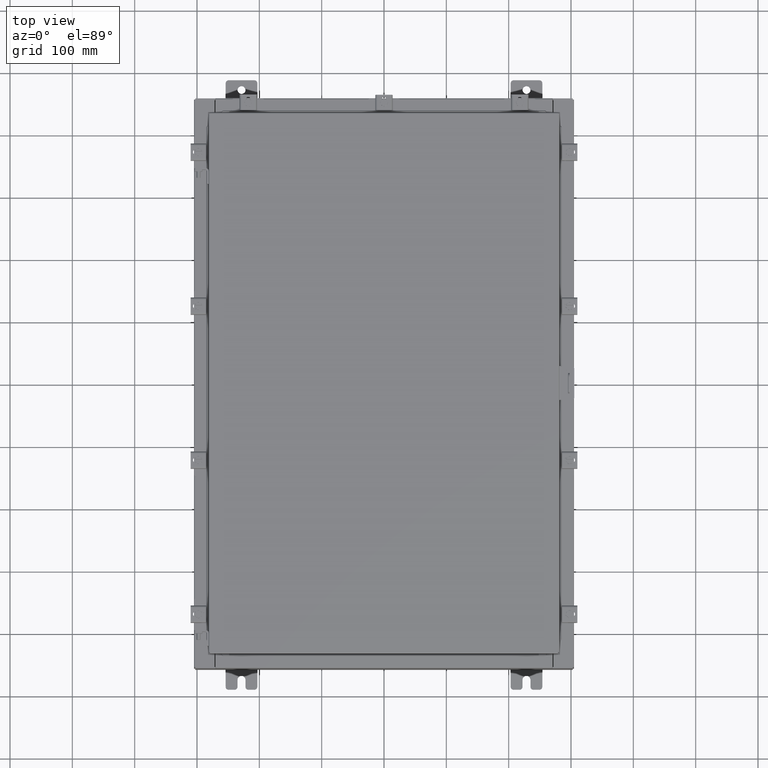
[diagram: clean part render]
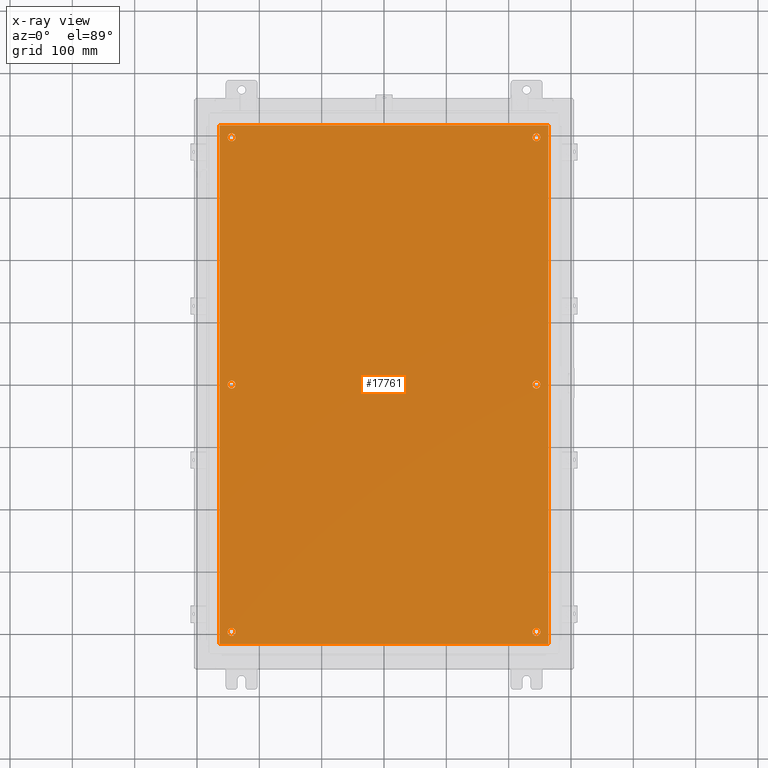
[diagram: x-ray — body ghosted, one internal face saturated and labeled with its STEP entity id]
A machine part, top view, then the same camera in x-ray: the body is ghosted and one INTERNAL B-rep face — a face not visible from any outside direction — is saturated and labeled: STEP entity #17761.
In plain terms, the highlighted planar face has unit normal (0, 0, -1).
Its self-contained STEP definition (entity closure, byte-faithful):
#327 = ORIENTED_EDGE ( 'NONE', *, *, #1531, .T. ) ;
#496 = EDGE_CURVE ( 'NONE', #18662, #17972, #12040, .T. ) ;
#560 = ORIENTED_EDGE ( 'NONE', *, *, #2446, .T. ) ;
#1047 = DIRECTION ( 'NONE',  ( -0.0000000000000000000, -0.0000000000000000000, 1.000000000000000000 ) ) ;
#1229 = ORIENTED_EDGE ( 'NONE', *, *, #12869, .T. ) ;
#1395 = CARTESIAN_POINT ( 'NONE',  ( 9.875000000000007100, 15.62500000000000200, -0.1039999999999999800 ) ) ;
#1531 = EDGE_CURVE ( 'NONE', #17713, #14114, #1981, .T. ) ;
#1641 = CARTESIAN_POINT ( 'NONE',  ( -9.625000000000007100, -15.62500000000000200, -0.1039999999999999800 ) ) ;
#1773 = ORIENTED_EDGE ( 'NONE', *, *, #10586, .T. ) ;
#1909 = CARTESIAN_POINT ( 'NONE',  ( -9.875000000000007100, 15.62500000000000200, -0.1039999999999999800 ) ) ;
#1981 = CIRCLE ( 'NONE', #7993, 0.2500000000000008900 ) ;
#2149 = CARTESIAN_POINT ( 'NONE',  ( 9.875000000000007100, -15.62500000000000200, -0.1039999999999999800 ) ) ;
#2173 = CARTESIAN_POINT ( 'NONE',  ( 9.625000000000007100, -15.62500000000000200, -0.1039999999999999800 ) ) ;
#2237 = EDGE_CURVE ( 'NONE', #8862, #17233, #19991, .T. ) ;
#2446 = EDGE_CURVE ( 'NONE', #17233, #8862, #11827, .T. ) ;
#2678 = CARTESIAN_POINT ( 'NONE',  ( -10.38300000000000100, 16.38300000000000300, -0.1039999999999987600 ) ) ;
#2726 = ORIENTED_EDGE ( 'NONE', *, *, #10454, .T. ) ;
#2852 = CIRCLE ( 'NONE', #15092, 0.2499999999999998100 ) ;
#3015 = VERTEX_POINT ( 'NONE', #13951 ) ;
#3472 = DIRECTION ( 'NONE',  ( -1.000000000000000000, 0.0000000000000000000, 0.0000000000000000000 ) ) ;
#3526 = FACE_BOUND ( 'NONE', #15108, .T. ) ;
#3667 = LINE ( 'NONE', #4409, #16289 ) ;
#3702 = EDGE_LOOP ( 'NONE', ( #8308, #22287, #23240, #9431 ) ) ;
#3992 = CARTESIAN_POINT ( 'NONE',  ( 0.0000000000000000000, 0.0000000000000000000, -0.1039999999999999800 ) ) ;
#4008 = DIRECTION ( 'NONE',  ( -1.000000000000000000, 0.0000000000000000000, 0.0000000000000000000 ) ) ;
#4095 = CARTESIAN_POINT ( 'NONE',  ( 9.375000000000007100, 2.650915570591087300E-015, -0.1039999999999999800 ) ) ;
#4206 = DIRECTION ( 'NONE',  ( -0.0000000000000000000, -0.0000000000000000000, 1.000000000000000000 ) ) ;
#4273 = CARTESIAN_POINT ( 'NONE',  ( 9.375000000000007100, 15.62500000000000200, -0.1039999999999999800 ) ) ;
#4362 = VECTOR ( 'NONE', #11618, 39.37007874015748100 ) ;
#4409 = CARTESIAN_POINT ( 'NONE',  ( -10.50000000000000200, -16.38299999999999600, -0.1040000000000009100 ) ) ;
#4437 = EDGE_CURVE ( 'NONE', #7335, #9704, #2852, .T. ) ;
#4454 = CARTESIAN_POINT ( 'NONE',  ( 10.38300000000000100, -16.38299999999999600, -0.1040000000000009100 ) ) ;
#4493 = AXIS2_PLACEMENT_3D ( 'NONE', #7676, #20218, #9467 ) ;
#4548 = CIRCLE ( 'NONE', #13576, 0.2500000000000008900 ) ;
#4688 = VERTEX_POINT ( 'NONE', #4095 ) ;
#5017 = AXIS2_PLACEMENT_3D ( 'NONE', #2173, #14761, #4008 ) ;
#5171 = AXIS2_PLACEMENT_3D ( 'NONE', #1641, #14213, #3472 ) ;
#5226 = EDGE_CURVE ( 'NONE', #9607, #20284, #3667, .T. ) ;
#5318 = ORIENTED_EDGE ( 'NONE', *, *, #13765, .T. ) ;
#5533 = CARTESIAN_POINT ( 'NONE',  ( -9.375000000000007100, 15.62500000000000200, -0.1039999999999999800 ) ) ;
#6064 = DIRECTION ( 'NONE',  ( -0.0000000000000000000, -0.0000000000000000000, 1.000000000000000000 ) ) ;
#6156 = EDGE_LOOP ( 'NONE', ( #1229, #21907 ) ) ;
#6458 = CIRCLE ( 'NONE', #18782, 0.2499999999999998100 ) ;
#6660 = CARTESIAN_POINT ( 'NONE',  ( 10.38300000000000100, -16.38299999999999600, -0.1040000000000009100 ) ) ;
#6683 = DIRECTION ( 'NONE',  ( -0.0000000000000000000, -0.0000000000000000000, 1.000000000000000000 ) ) ;
#6889 = CIRCLE ( 'NONE', #16619, 0.2499999999999998100 ) ;
#6916 = DIRECTION ( 'NONE',  ( -0.0000000000000000000, -0.0000000000000000000, 1.000000000000000000 ) ) ;
#7178 = EDGE_CURVE ( 'NONE', #3015, #22926, #22176, .T. ) ;
#7300 = CARTESIAN_POINT ( 'NONE',  ( -9.625000000000007100, 15.62500000000000200, -0.1039999999999999800 ) ) ;
#7335 = VERTEX_POINT ( 'NONE', #1395 ) ;
#7491 = ORIENTED_EDGE ( 'NONE', *, *, #496, .T. ) ;
#7591 = DIRECTION ( 'NONE',  ( -1.000000000000000000, 0.0000000000000000000, -0.0000000000000000000 ) ) ;
#7676 = CARTESIAN_POINT ( 'NONE',  ( -9.625000000000005300, 2.628543122537473900E-016, -0.1039999999999999800 ) ) ;
#7993 = AXIS2_PLACEMENT_3D ( 'NONE', #14959, #4206, #16754 ) ;
#8145 = CARTESIAN_POINT ( 'NONE',  ( -9.375000000000007100, -15.62500000000000200, -0.1039999999999999800 ) ) ;
#8305 = FACE_BOUND ( 'NONE', #9524, .T. ) ;
#8308 = ORIENTED_EDGE ( 'NONE', *, *, #5226, .F. ) ;
#8401 = CARTESIAN_POINT ( 'NONE',  ( 9.875000000000007100, 2.620299400612403500E-015, -0.1039999999999999800 ) ) ;
#8591 = VERTEX_POINT ( 'NONE', #8401 ) ;
#8621 = CARTESIAN_POINT ( 'NONE',  ( 9.625000000000007100, 15.62500000000000200, -0.1039999999999999800 ) ) ;
#8862 = VERTEX_POINT ( 'NONE', #19861 ) ;
#8909 = AXIS2_PLACEMENT_3D ( 'NONE', #16783, #6064, #18590 ) ;
#9125 = DIRECTION ( 'NONE',  ( -1.000000000000000000, 0.0000000000000000000, 0.0000000000000000000 ) ) ;
#9144 = LINE ( 'NONE', #6660, #13328 ) ;
#9170 = EDGE_LOOP ( 'NONE', ( #1773, #21283 ) ) ;
#9431 = ORIENTED_EDGE ( 'NONE', *, *, #17973, .F. ) ;
#9467 = DIRECTION ( 'NONE',  ( -1.000000000000000000, 0.0000000000000000000, 0.0000000000000000000 ) ) ;
#9513 = CARTESIAN_POINT ( 'NONE',  ( 9.625000000000007100, 15.62500000000000200, -0.1039999999999999800 ) ) ;
#9524 = EDGE_LOOP ( 'NONE', ( #560, #16279 ) ) ;
#9607 = VERTEX_POINT ( 'NONE', #11157 ) ;
#9704 = VERTEX_POINT ( 'NONE', #4273 ) ;
#9929 = ORIENTED_EDGE ( 'NONE', *, *, #17324, .T. ) ;
#10239 = CARTESIAN_POINT ( 'NONE',  ( -9.625000000000007100, 15.62500000000000200, -0.1039999999999999800 ) ) ;
#10248 = DIRECTION ( 'NONE',  ( 0.0000000000000000000, 1.000000000000000000, 0.0000000000000000000 ) ) ;
#10393 = DIRECTION ( 'NONE',  ( -1.000000000000000000, 0.0000000000000000000, 0.0000000000000000000 ) ) ;
#10454 = EDGE_CURVE ( 'NONE', #17972, #18662, #10939, .T. ) ;
#10547 = AXIS2_PLACEMENT_3D ( 'NONE', #10239, #22839, #12045 ) ;
#10586 = EDGE_CURVE ( 'NONE', #8591, #4688, #12919, .T. ) ;
#10939 = CIRCLE ( 'NONE', #4493, 0.2500000000000008900 ) ;
#11124 = PLANE ( 'NONE',  #12148 ) ;
#11157 = CARTESIAN_POINT ( 'NONE',  ( -10.38300000000000100, -16.38299999999999600, -0.1040000000000009100 ) ) ;
#11325 = DIRECTION ( 'NONE',  ( -1.000000000000000000, 0.0000000000000000000, 0.0000000000000000000 ) ) ;
#11518 = EDGE_CURVE ( 'NONE', #4688, #8591, #6458, .T. ) ;
#11556 = CIRCLE ( 'NONE', #5171, 0.2500000000000008900 ) ;
#11618 = DIRECTION ( 'NONE',  ( 0.0000000000000000000, -1.000000000000000000, 0.0000000000000000000 ) ) ;
#11820 = CARTESIAN_POINT ( 'NONE',  ( 9.625000000000007100, 2.620299400612403500E-015, -0.1039999999999999800 ) ) ;
#11827 = CIRCLE ( 'NONE', #20657, 0.2499999999999998100 ) ;
#12040 = CIRCLE ( 'NONE', #8909, 0.2500000000000008900 ) ;
#12045 = DIRECTION ( 'NONE',  ( -1.000000000000000000, 0.0000000000000000000, 0.0000000000000000000 ) ) ;
#12148 = AXIS2_PLACEMENT_3D ( 'NONE', #3992, #18331, #7591 ) ;
#12869 = EDGE_CURVE ( 'NONE', #19356, #18241, #16655, .T. ) ;
#12919 = CIRCLE ( 'NONE', #12924, 0.2499999999999998100 ) ;
#12924 = AXIS2_PLACEMENT_3D ( 'NONE', #11820, #1047, #13633 ) ;
#13070 = FACE_BOUND ( 'NONE', #9170, .T. ) ;
#13328 = VECTOR ( 'NONE', #10248, 39.37007874015748100 ) ;
#13576 = AXIS2_PLACEMENT_3D ( 'NONE', #7300, #19868, #9125 ) ;
#13633 = DIRECTION ( 'NONE',  ( -1.000000000000000000, 0.0000000000000000000, 0.0000000000000000000 ) ) ;
#13765 = EDGE_CURVE ( 'NONE', #14114, #17713, #11556, .T. ) ;
#13859 = EDGE_CURVE ( 'NONE', #18241, #19356, #4548, .T. ) ;
#13916 = LINE ( 'NONE', #2678, #4362 ) ;
#13951 = CARTESIAN_POINT ( 'NONE',  ( 10.38300000000000100, 16.38300000000000300, -0.1040000000000009100 ) ) ;
#14114 = VERTEX_POINT ( 'NONE', #8145 ) ;
#14213 = DIRECTION ( 'NONE',  ( -0.0000000000000000000, -0.0000000000000000000, 1.000000000000000000 ) ) ;
#14754 = FACE_BOUND ( 'NONE', #21418, .T. ) ;
#14761 = DIRECTION ( 'NONE',  ( -0.0000000000000000000, -0.0000000000000000000, 1.000000000000000000 ) ) ;
#14959 = CARTESIAN_POINT ( 'NONE',  ( -9.625000000000007100, -15.62500000000000200, -0.1039999999999999800 ) ) ;
#15092 = AXIS2_PLACEMENT_3D ( 'NONE', #8621, #21191, #10393 ) ;
#15108 = EDGE_LOOP ( 'NONE', ( #18340, #9929 ) ) ;
#15203 = CARTESIAN_POINT ( 'NONE',  ( -10.38300000000000100, 16.38300000000000300, -0.1039999999999987600 ) ) ;
#16279 = ORIENTED_EDGE ( 'NONE', *, *, #2237, .T. ) ;
#16289 = VECTOR ( 'NONE', #18750, 39.37007874015748100 ) ;
#16462 = CARTESIAN_POINT ( 'NONE',  ( -9.875000000000007100, -15.62500000000000200, -0.1039999999999999800 ) ) ;
#16619 = AXIS2_PLACEMENT_3D ( 'NONE', #9513, #22121, #11325 ) ;
#16655 = CIRCLE ( 'NONE', #10547, 0.2500000000000008900 ) ;
#16754 = DIRECTION ( 'NONE',  ( -1.000000000000000000, 0.0000000000000000000, 0.0000000000000000000 ) ) ;
#16783 = CARTESIAN_POINT ( 'NONE',  ( -9.625000000000005300, 2.628543122537473900E-016, -0.1039999999999999800 ) ) ;
#17233 = VERTEX_POINT ( 'NONE', #2149 ) ;
#17281 = FACE_OUTER_BOUND ( 'NONE', #3702, .T. ) ;
#17324 = EDGE_CURVE ( 'NONE', #9704, #7335, #6889, .T. ) ;
#17387 = VECTOR ( 'NONE', #22466, 39.37007874015748100 ) ;
#17422 = CARTESIAN_POINT ( 'NONE',  ( 9.625000000000007100, 2.620299400612403500E-015, -0.1039999999999999800 ) ) ;
#17633 = CARTESIAN_POINT ( 'NONE',  ( 9.625000000000007100, -15.62500000000000200, -0.1039999999999999800 ) ) ;
#17713 = VERTEX_POINT ( 'NONE', #16462 ) ;
#17761 = ADVANCED_FACE ( 'NONE', ( #13070, #22661, #14754, #8305, #3526, #22079, #17281 ), #11124, .T. ) ;
#17972 = VERTEX_POINT ( 'NONE', #19203 ) ;
#17973 = EDGE_CURVE ( 'NONE', #20284, #3015, #9144, .T. ) ;
#18241 = VERTEX_POINT ( 'NONE', #1909 ) ;
#18331 = DIRECTION ( 'NONE',  ( 0.0000000000000000000, 0.0000000000000000000, -1.000000000000000000 ) ) ;
#18340 = ORIENTED_EDGE ( 'NONE', *, *, #4437, .T. ) ;
#18590 = DIRECTION ( 'NONE',  ( -1.000000000000000000, 0.0000000000000000000, 0.0000000000000000000 ) ) ;
#18662 = VERTEX_POINT ( 'NONE', #19084 ) ;
#18750 = DIRECTION ( 'NONE',  ( 1.000000000000000000, -0.0000000000000000000, -0.0000000000000000000 ) ) ;
#18782 = AXIS2_PLACEMENT_3D ( 'NONE', #17422, #6683, #19232 ) ;
#18821 = CARTESIAN_POINT ( 'NONE',  ( 10.50000000000000400, 16.38299999999999900, -0.1040000000000009100 ) ) ;
#18973 = EDGE_LOOP ( 'NONE', ( #7491, #2726 ) ) ;
#19084 = CARTESIAN_POINT ( 'NONE',  ( -9.375000000000005300, 2.628543122537473900E-016, -0.1039999999999999800 ) ) ;
#19203 = CARTESIAN_POINT ( 'NONE',  ( -9.875000000000005300, 2.934704822324310800E-016, -0.1039999999999999800 ) ) ;
#19232 = DIRECTION ( 'NONE',  ( -1.000000000000000000, 0.0000000000000000000, 0.0000000000000000000 ) ) ;
#19356 = VERTEX_POINT ( 'NONE', #5533 ) ;
#19451 = DIRECTION ( 'NONE',  ( -1.000000000000000000, 0.0000000000000000000, 0.0000000000000000000 ) ) ;
#19636 = EDGE_CURVE ( 'NONE', #22926, #9607, #13916, .T. ) ;
#19861 = CARTESIAN_POINT ( 'NONE',  ( 9.375000000000007100, -15.62500000000000200, -0.1039999999999999800 ) ) ;
#19868 = DIRECTION ( 'NONE',  ( -0.0000000000000000000, -0.0000000000000000000, 1.000000000000000000 ) ) ;
#19991 = CIRCLE ( 'NONE', #5017, 0.2499999999999998100 ) ;
#20218 = DIRECTION ( 'NONE',  ( -0.0000000000000000000, -0.0000000000000000000, 1.000000000000000000 ) ) ;
#20284 = VERTEX_POINT ( 'NONE', #4454 ) ;
#20657 = AXIS2_PLACEMENT_3D ( 'NONE', #17633, #6916, #19451 ) ;
#21191 = DIRECTION ( 'NONE',  ( -0.0000000000000000000, -0.0000000000000000000, 1.000000000000000000 ) ) ;
#21283 = ORIENTED_EDGE ( 'NONE', *, *, #11518, .T. ) ;
#21418 = EDGE_LOOP ( 'NONE', ( #5318, #327 ) ) ;
#21907 = ORIENTED_EDGE ( 'NONE', *, *, #13859, .T. ) ;
#22079 = FACE_BOUND ( 'NONE', #6156, .T. ) ;
#22121 = DIRECTION ( 'NONE',  ( -0.0000000000000000000, -0.0000000000000000000, 1.000000000000000000 ) ) ;
#22176 = LINE ( 'NONE', #18821, #17387 ) ;
#22287 = ORIENTED_EDGE ( 'NONE', *, *, #19636, .F. ) ;
#22466 = DIRECTION ( 'NONE',  ( -1.000000000000000000, -0.0000000000000000000, -0.0000000000000000000 ) ) ;
#22661 = FACE_BOUND ( 'NONE', #18973, .T. ) ;
#22839 = DIRECTION ( 'NONE',  ( -0.0000000000000000000, -0.0000000000000000000, 1.000000000000000000 ) ) ;
#22926 = VERTEX_POINT ( 'NONE', #15203 ) ;
#23240 = ORIENTED_EDGE ( 'NONE', *, *, #7178, .F. ) ;